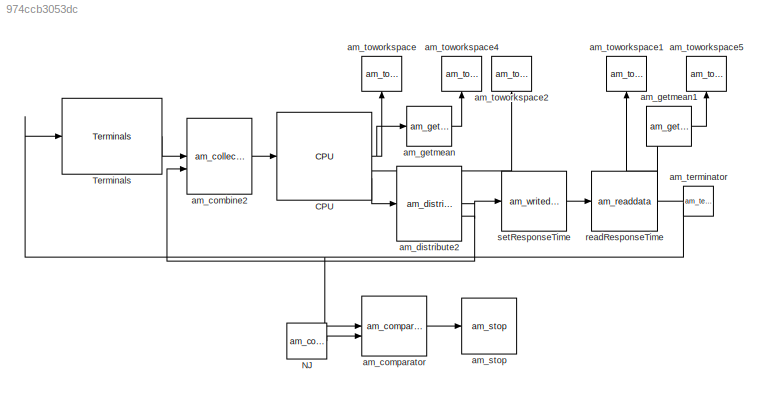
MODEL slx_974ccb3053dc
KIND model
CONFIG AbsTol = auto
CONFIG EnableMultiTasking = off
CONFIG FixedStep = auto
CONFIG MaxStep = auto
CONFIG MinStep = auto
CONFIG RelTol = 1e-3
CONFIG SampleTimeConstraint = Unconstrained
CONFIG SolverName = VariableStepAuto
CONFIG StartTime = 0.0
CONFIG StopTime = 10.0
BLOCK [Reference] CPU  REF=TimeSharedLib/CPU
  SourceBlock = TimeSharedLib/CPU
BLOCK [Reference] NJ  REF=StdLib/am_const
  SourceBlock = StdLib/am_const
  SourceType = Const
BLOCK [Reference] Terminals  REF=TimeSharedLib/Terminals
  SourceBlock = TimeSharedLib/Terminals
BLOCK [Reference] am_combine2  REF=StdLib/am_collect2
  SourceBlock = StdLib/am_collect2
  SourceType = Collect2
BLOCK [Reference] am_comparator  REF=StdLib/am_comparator
  SourceBlock = StdLib/am_comparator
  SourceType = Comparator
BLOCK [Reference] am_distribute2  REF=StdLib/am_distribute2
  SourceBlock = StdLib/am_distribute2
  SourceType = Distribute2
BLOCK [Reference] am_getmean  REF=StdLib/am_getmean
  SourceBlock = StdLib/am_getmean
  SourceType = Getmean
BLOCK [Reference] am_getmean1  REF=StdLib/am_getmean
  SourceBlock = StdLib/am_getmean
  SourceType = Getmean
BLOCK [Reference] am_stop  REF=StdLib/am_stop
  SourceBlock = StdLib/am_stop
  SourceType = Stop
BLOCK [Reference] am_terminator  REF=StdLib/am_terminator
  SourceBlock = StdLib/am_terminator
  SourceType = Terminator
BLOCK [Reference] am_toworkspace  REF=StdLib/am_toworkspace
  NameLocation = right
  SourceBlock = StdLib/am_toworkspace
  SourceType = ToWorkspace
BLOCK [Reference] am_toworkspace1  REF=StdLib/am_toworkspace
  NameLocation = right
  SourceBlock = StdLib/am_toworkspace
  SourceType = ToWorkspace
BLOCK [Reference] am_toworkspace2  REF=StdLib/am_toworkspace
  NameLocation = right
  SourceBlock = StdLib/am_toworkspace
  SourceType = ToWorkspace
BLOCK [Reference] am_toworkspace4  REF=StdLib/am_toworkspace
  NameLocation = right
  SourceBlock = StdLib/am_toworkspace
  SourceType = ToWorkspace
BLOCK [Reference] am_toworkspace5  REF=StdLib/am_toworkspace
  NameLocation = right
  SourceBlock = StdLib/am_toworkspace
  SourceType = ToWorkspace
BLOCK [Reference] readResponseTime  REF=StdLib/am_readdata
  SourceBlock = StdLib/am_readdata
  SourceType = Readdata
BLOCK [Reference] setResponseTime  REF=StdLib/am_writedata
  SourceBlock = StdLib/am_writedata
  SourceType = Writedata
NET CPU:1 -> am_getmean:1, am_toworkspace:1
LINE CPU:2 -> am_toworkspace2:1
LINE CPU:3 -> am_distribute2:1
LINE NJ:1 -> am_comparator:2
LINE Terminals:1 -> am_combine2:1
LINE am_combine2:1 -> CPU:1
LINE am_comparator:1 -> am_stop:1
LINE am_distribute2:1 -> setResponseTime:1
LINE am_distribute2:2 -> am_combine2:2
LINE am_getmean1:1 -> am_toworkspace5:1
LINE am_getmean:1 -> am_toworkspace4:1
NET am_terminator:1 -> Terminals:1, am_comparator:1
LINE readResponseTime:1 -> am_terminator:1
NET readResponseTime:2 -> am_getmean1:1, am_toworkspace1:1
LINE setResponseTime:1 -> readResponseTime:1
note: NET lines group one-source signal fan-out (src -> all destinations, sorted); 1:1 wires keep LINE
